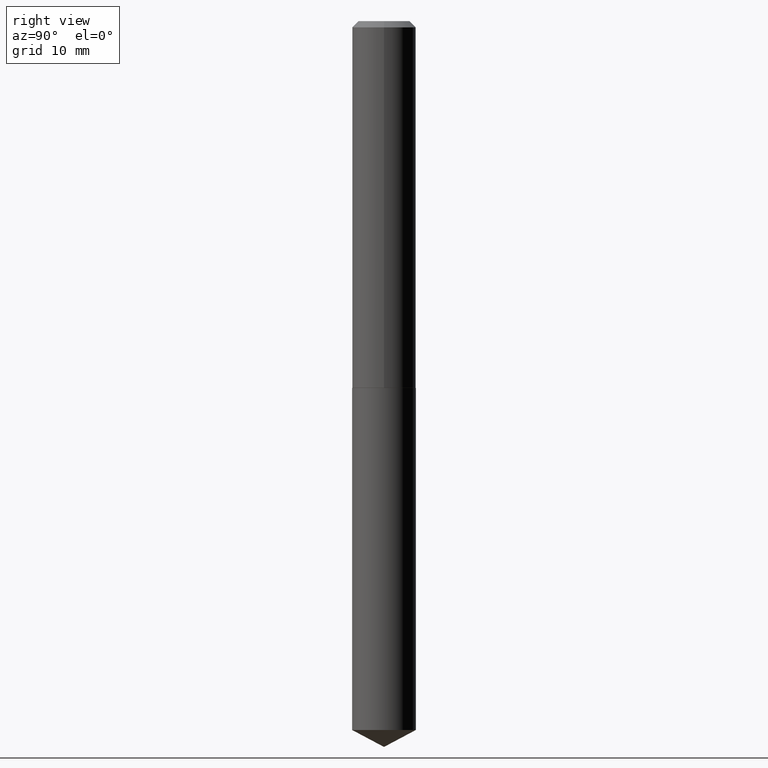
[diagram: clean part render]
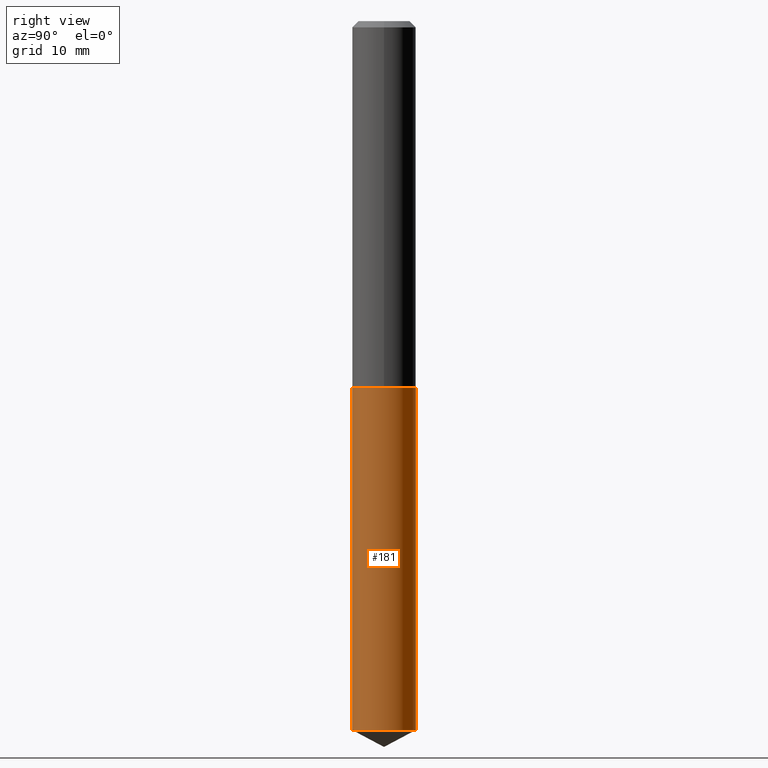
[diagram: same view with one face highlighted and labeled with its STEP entity id]
A machine part, right view. The second image highlights one B-rep face of the part: STEP entity #181.
In plain terms, the highlighted cylindrical surface (edge-blend (fillet) strip) has radius 4.0005 mm, axis along (-0, 0, 1).
Its self-contained STEP definition (entity closure, byte-faithful):
#15 = VERTEX_POINT ( 'NONE', #285 ) ;
#24 = LINE ( 'NONE', #327, #380 ) ;
#28 = CARTESIAN_POINT ( 'NONE',  ( 4.428988554881901583E-29, -6.323421852778821873E-15, -1.811100000000000154 ) ) ;
#36 = CARTESIAN_POINT ( 'NONE',  ( 1.119104808822243392E-15, 0.1574999999999877887, -3.498955764513318023 ) ) ;
#48 = DIRECTION ( 'NONE',  ( -2.445398050251295753E-29, 3.491582665367583684E-15, 1.000000000000000000 ) ) ;
#56 = EDGE_CURVE ( 'NONE', #15, #384, #319, .T. ) ;
#57 = ORIENTED_EDGE ( 'NONE', *, *, #76, .T. ) ;
#74 = CIRCLE ( 'NONE', #236, 0.1575000000000000011 ) ;
#76 = EDGE_CURVE ( 'NONE', #301, #83, #24, .T. ) ;
#77 = CARTESIAN_POINT ( 'NONE',  ( -1.099816621735542318E-15, -0.1575000000000063016, -1.811099999999999710 ) ) ;
#83 = VERTEX_POINT ( 'NONE', #223 ) ;
#90 = CIRCLE ( 'NONE', #272, 0.1575000000000000011 ) ;
#109 = DIRECTION ( 'NONE',  ( -6.982962677686264344E-15, -1.000000000000000000, 3.469013325287953293E-15 ) ) ;
#111 = DIRECTION ( 'NONE',  ( -6.982962677686264344E-15, -1.000000000000000000, 3.469013325287953293E-15 ) ) ;
#124 = CARTESIAN_POINT ( 'NONE',  ( -1.099816621735542318E-15, -0.1575000000000063016, -1.811099999999999710 ) ) ;
#136 = EDGE_CURVE ( 'NONE', #15, #301, #74, .T. ) ;
#154 = ORIENTED_EDGE ( 'NONE', *, *, #375, .F. ) ;
#157 = VECTOR ( 'NONE', #48, 39.37007874015748143 ) ;
#181 = ADVANCED_FACE ( 'NONE', ( #257 ), #356, .T. ) ;
#196 = DIRECTION ( 'NONE',  ( -2.445398050251295473E-29, 3.491582665367583684E-15, 1.000000000000000000 ) ) ;
#206 = ORIENTED_EDGE ( 'NONE', *, *, #136, .T. ) ;
#223 = CARTESIAN_POINT ( 'NONE',  ( 1.119104808822243392E-15, 0.1574999999999936728, -1.811100000000000820 ) ) ;
#236 = AXIS2_PLACEMENT_3D ( 'NONE', #300, #390, #109 ) ;
#238 = DIRECTION ( 'NONE',  ( -2.445398050251295473E-29, 3.491582665367583684E-15, 1.000000000000000000 ) ) ;
#243 = DIRECTION ( 'NONE',  ( -6.982962677686264344E-15, -1.000000000000000000, 3.469013325287953293E-15 ) ) ;
#253 = EDGE_LOOP ( 'NONE', ( #206, #57, #154, #290 ) ) ;
#257 = FACE_OUTER_BOUND ( 'NONE', #253, .T. ) ;
#270 = AXIS2_PLACEMENT_3D ( 'NONE', #28, #196, #111 ) ;
#272 = AXIS2_PLACEMENT_3D ( 'NONE', #336, #238, #243 ) ;
#285 = CARTESIAN_POINT ( 'NONE',  ( -1.099816621735501494E-15, -0.1575000000000122413, -3.498955764513316691 ) ) ;
#290 = ORIENTED_EDGE ( 'NONE', *, *, #56, .F. ) ;
#296 = DIRECTION ( 'NONE',  ( -2.445398050251295753E-29, 3.491582665367583684E-15, 1.000000000000000000 ) ) ;
#300 = CARTESIAN_POINT ( 'NONE',  ( 8.556467750528176328E-29, -1.221670978179427015E-14, -3.498955764513317135 ) ) ;
#301 = VERTEX_POINT ( 'NONE', #36 ) ;
#319 = LINE ( 'NONE', #77, #157 ) ;
#327 = CARTESIAN_POINT ( 'NONE',  ( 1.119104808822201977E-15, 0.1574999999999936728, -1.811100000000000820 ) ) ;
#336 = CARTESIAN_POINT ( 'NONE',  ( 4.428988554881901583E-29, -6.323421852778821873E-15, -1.811100000000000154 ) ) ;
#356 = CYLINDRICAL_SURFACE ( 'NONE', #270, 0.1575000000000000011 ) ;
#375 = EDGE_CURVE ( 'NONE', #384, #83, #90, .T. ) ;
#380 = VECTOR ( 'NONE', #296, 39.37007874015748143 ) ;
#384 = VERTEX_POINT ( 'NONE', #124 ) ;
#390 = DIRECTION ( 'NONE',  ( -2.445398050251295473E-29, 3.491582665367583684E-15, 1.000000000000000000 ) ) ;